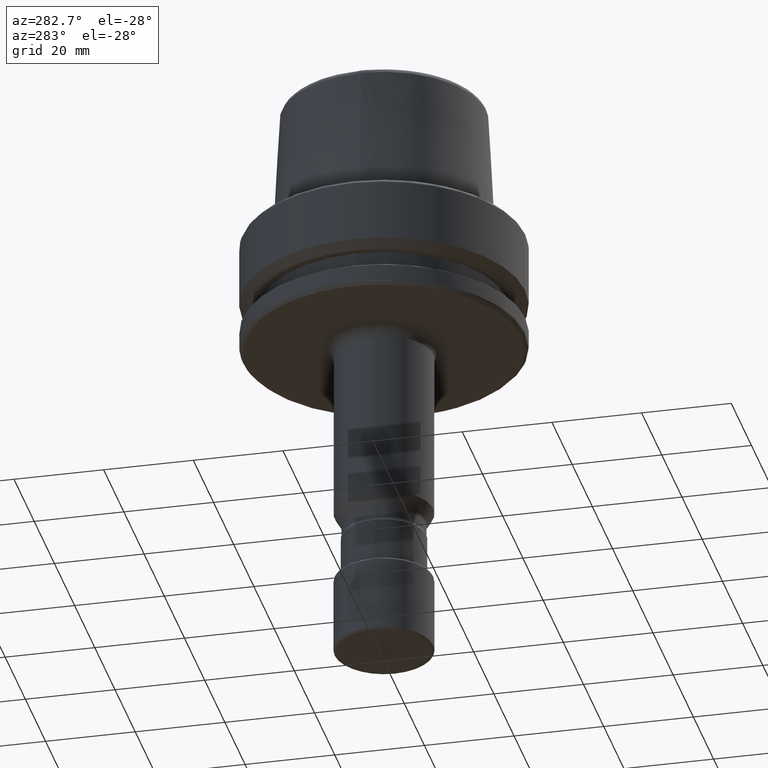
[diagram: clean part render]
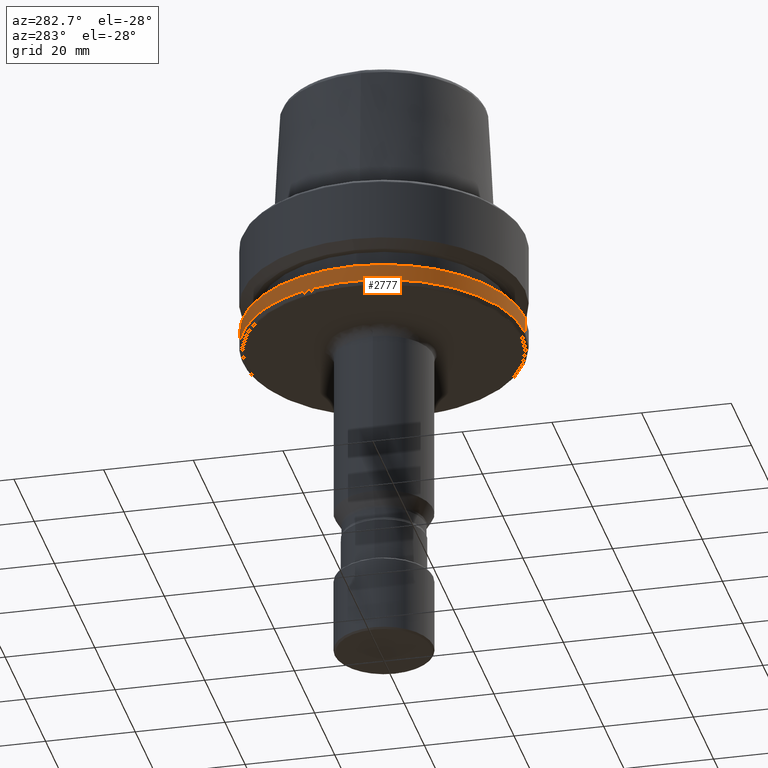
[diagram: same view with one face highlighted and labeled with its STEP entity id]
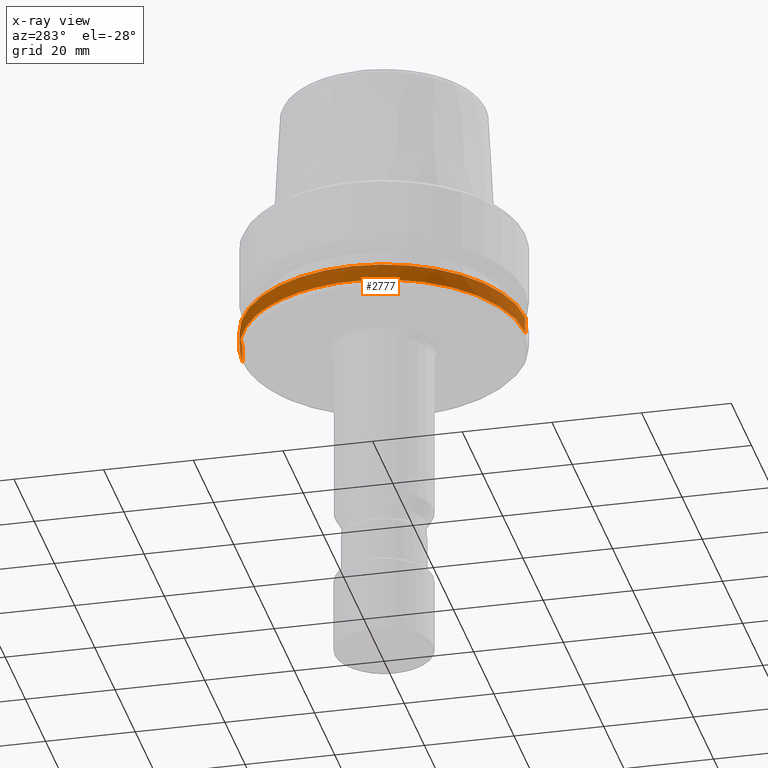
[diagram: x-ray of the same camera — body ghosted, the highlighted face saturated]
A machine part, auxiliary view. The second image highlights one B-rep face of the part: STEP entity #2777.
The next image is the same camera in x-ray: the body ghosted, the highlighted face saturated — about 0% of this face is hidden behind the body in this view.
In plain terms, the highlighted cylindrical surface (partial cylindrical patch) has radius 31.5 mm, axis along (0, -0, 1).
Its self-contained STEP definition (entity closure, byte-faithful):
#34 = CARTESIAN_POINT ( 'NONE',  ( -19.99999999999930400, 24.33618704712970500, -25.03431457509685400 ) ) ;
#56 = AXIS2_PLACEMENT_3D ( 'NONE', #1501, #3215, #1769 ) ;
#80 = CARTESIAN_POINT ( 'NONE',  ( 0.0000000000000000000, 0.0000000000000000000, -25.03431457449731900 ) ) ;
#115 = VERTEX_POINT ( 'NONE', #2677 ) ;
#143 = DIRECTION ( 'NONE',  ( 0.0000000000000000000, -5.507058653894625200E-017, 1.000000000000000000 ) ) ;
#166 = VERTEX_POINT ( 'NONE', #1015 ) ;
#231 = EDGE_LOOP ( 'NONE', ( #864, #1748, #1531, #1711, #2471, #802, #332, #687, #1664 ) ) ;
#322 = FACE_OUTER_BOUND ( 'NONE', #231, .T. ) ;
#332 = ORIENTED_EDGE ( 'NONE', *, *, #2000, .T. ) ;
#338 = VERTEX_POINT ( 'NONE', #684 ) ;
#380 = DIRECTION ( 'NONE',  ( 1.000000000000000000, 0.0000000000000000000, 0.0000000000000000000 ) ) ;
#393 = CIRCLE ( 'NONE', #2925, 31.49999999736794700 ) ;
#445 = EDGE_CURVE ( 'NONE', #166, #338, #2544, .T. ) ;
#515 = VERTEX_POINT ( 'NONE', #935 ) ;
#544 = AXIS2_PLACEMENT_3D ( 'NONE', #837, #2607, #1103 ) ;
#684 = CARTESIAN_POINT ( 'NONE',  ( -30.28398955399999800, -8.667754999000001300, -25.03431457553399000 ) ) ;
#687 = ORIENTED_EDGE ( 'NONE', *, *, #3324, .F. ) ;
#714 = EDGE_CURVE ( 'NONE', #2758, #115, #2633, .T. ) ;
#729 = VECTOR ( 'NONE', #2854, 1000.000000000000000 ) ;
#740 = VERTEX_POINT ( 'NONE', #1188 ) ;
#741 = EDGE_CURVE ( 'NONE', #515, #338, #2423, .T. ) ;
#773 = LINE ( 'NONE', #2843, #729 ) ;
#802 = ORIENTED_EDGE ( 'NONE', *, *, #445, .F. ) ;
#837 = CARTESIAN_POINT ( 'NONE',  ( 0.0000000000000000000, 0.0000000000000000000, -25.03431457500000700 ) ) ;
#864 = ORIENTED_EDGE ( 'NONE', *, *, #714, .F. ) ;
#875 = DIRECTION ( 'NONE',  ( 0.0000000000000000000, -0.0000000000000000000, -1.000000000000000000 ) ) ;
#935 = CARTESIAN_POINT ( 'NONE',  ( -30.31739047733436400, 8.550195005946042300, -25.03431457515185300 ) ) ;
#1015 = CARTESIAN_POINT ( 'NONE',  ( 0.0000000000000000000, -31.50000000000000000, -25.03431457497092400 ) ) ;
#1066 = AXIS2_PLACEMENT_3D ( 'NONE', #1438, #3162, #1713 ) ;
#1103 = DIRECTION ( 'NONE',  ( 1.000000000000000000, 0.0000000000000000000, 2.202823461557850300E-016 ) ) ;
#1106 = AXIS2_PLACEMENT_3D ( 'NONE', #2740, #143, #2988 ) ;
#1188 = CARTESIAN_POINT ( 'NONE',  ( 0.0000000000000000000, -31.49999999736794700, -21.35544551591030100 ) ) ;
#1192 = CARTESIAN_POINT ( 'NONE',  ( -31.49999999736794700, 0.0000000000000000000, -21.35544551591030100 ) ) ;
#1193 = CARTESIAN_POINT ( 'NONE',  ( 3.857637417314162700E-015, 31.50000000000000000, -25.03431457500000000 ) ) ;
#1198 = AXIS2_PLACEMENT_3D ( 'NONE', #80, #1984, #380 ) ;
#1225 = CARTESIAN_POINT ( 'NONE',  ( 0.0000000000000000000, 0.0000000000000000000, -25.03431457449731900 ) ) ;
#1303 = AXIS2_PLACEMENT_3D ( 'NONE', #1225, #2965, #1498 ) ;
#1379 = CIRCLE ( 'NONE', #1066, 31.50000000000000000 ) ;
#1422 = DIRECTION ( 'NONE',  ( 0.0000000000000000000, -5.507058653894625200E-017, 1.000000000000000000 ) ) ;
#1425 = CARTESIAN_POINT ( 'NONE',  ( 3.857637417314162700E-015, 31.50000000000000000, -25.03431457500000700 ) ) ;
#1438 = CARTESIAN_POINT ( 'NONE',  ( 0.0000000000000000000, 0.0000000000000000000, -25.03431457500000700 ) ) ;
#1498 = DIRECTION ( 'NONE',  ( 1.000000000000000000, 0.0000000000000000000, 0.0000000000000000000 ) ) ;
#1501 = CARTESIAN_POINT ( 'NONE',  ( 0.0000000000000000000, 0.0000000000000000000, -21.35544551591030100 ) ) ;
#1531 = ORIENTED_EDGE ( 'NONE', *, *, #2272, .T. ) ;
#1570 = CIRCLE ( 'NONE', #1303, 31.49999999736794700 ) ;
#1628 = CARTESIAN_POINT ( 'NONE',  ( 0.0000000000000000000, 0.0000000000000000000, -21.35544551591030100 ) ) ;
#1664 = ORIENTED_EDGE ( 'NONE', *, *, #1938, .F. ) ;
#1711 = ORIENTED_EDGE ( 'NONE', *, *, #1770, .F. ) ;
#1713 = DIRECTION ( 'NONE',  ( 1.000000000000000000, 0.0000000000000000000, 2.202823461557850300E-016 ) ) ;
#1748 = ORIENTED_EDGE ( 'NONE', *, *, #3231, .F. ) ;
#1769 = DIRECTION ( 'NONE',  ( 1.000000000000000000, 0.0000000000000000000, 0.0000000000000000000 ) ) ;
#1770 = EDGE_CURVE ( 'NONE', #515, #2597, #1784, .T. ) ;
#1784 = CIRCLE ( 'NONE', #544, 31.50000000000000000 ) ;
#1886 = DIRECTION ( 'NONE',  ( 1.000000000000000000, 0.0000000000000000000, 0.0000000000000000000 ) ) ;
#1938 = EDGE_CURVE ( 'NONE', #115, #2212, #393, .T. ) ;
#1984 = DIRECTION ( 'NONE',  ( -0.0000000000000000000, -0.0000000000000000000, 1.000000000000000000 ) ) ;
#2000 = EDGE_CURVE ( 'NONE', #166, #740, #773, .T. ) ;
#2115 = VECTOR ( 'NONE', #1422, 1000.000000000000000 ) ;
#2212 = VERTEX_POINT ( 'NONE', #1192 ) ;
#2272 = EDGE_CURVE ( 'NONE', #2753, #2597, #1570, .T. ) ;
#2308 = CYLINDRICAL_SURFACE ( 'NONE', #1106, 31.50000000000000000 ) ;
#2412 = CARTESIAN_POINT ( 'NONE',  ( -7.293089743232172900E-010, 6.264077798134870500E-010, -25.03431457497092400 ) ) ;
#2423 = CIRCLE ( 'NONE', #1198, 31.49999999736794700 ) ;
#2471 = ORIENTED_EDGE ( 'NONE', *, *, #741, .T. ) ;
#2544 = CIRCLE ( 'NONE', #2985, 31.50000000037379900 ) ;
#2597 = VERTEX_POINT ( 'NONE', #2976 ) ;
#2607 = DIRECTION ( 'NONE',  ( -0.0000000000000000000, -0.0000000000000000000, -1.000000000000000000 ) ) ;
#2633 = LINE ( 'NONE', #1193, #2115 ) ;
#2643 = DIRECTION ( 'NONE',  ( -1.000000000000000000, 0.0000000000000000000, 0.0000000000000000000 ) ) ;
#2677 = CARTESIAN_POINT ( 'NONE',  ( 3.857637417152996000E-015, 31.49999999736794700, -21.35544551591030100 ) ) ;
#2740 = CARTESIAN_POINT ( 'NONE',  ( 0.0000000000000000000, 0.0000000000000000000, -25.03431457500000000 ) ) ;
#2753 = VERTEX_POINT ( 'NONE', #34 ) ;
#2758 = VERTEX_POINT ( 'NONE', #1425 ) ;
#2777 = ADVANCED_FACE ( 'NONE', ( #322 ), #2308, .T. ) ;
#2843 = CARTESIAN_POINT ( 'NONE',  ( 0.0000000000000000000, -31.50000000000000000, -25.03431457500000000 ) ) ;
#2854 = DIRECTION ( 'NONE',  ( 0.0000000000000000000, -5.507058653894625200E-017, 1.000000000000000000 ) ) ;
#2925 = AXIS2_PLACEMENT_3D ( 'NONE', #1628, #3331, #1886 ) ;
#2965 = DIRECTION ( 'NONE',  ( -0.0000000000000000000, -0.0000000000000000000, 1.000000000000000000 ) ) ;
#2976 = CARTESIAN_POINT ( 'NONE',  ( -24.33618704724229400, 19.99999999999999600, -25.03431457509636700 ) ) ;
#2985 = AXIS2_PLACEMENT_3D ( 'NONE', #2412, #875, #2643 ) ;
#2988 = DIRECTION ( 'NONE',  ( 0.0000000000000000000, -1.000000000000000000, 0.0000000000000000000 ) ) ;
#3121 = CIRCLE ( 'NONE', #56, 31.49999999736794700 ) ;
#3162 = DIRECTION ( 'NONE',  ( -0.0000000000000000000, -0.0000000000000000000, -1.000000000000000000 ) ) ;
#3215 = DIRECTION ( 'NONE',  ( -0.0000000000000000000, -0.0000000000000000000, 1.000000000000000000 ) ) ;
#3231 = EDGE_CURVE ( 'NONE', #2753, #2758, #1379, .T. ) ;
#3324 = EDGE_CURVE ( 'NONE', #2212, #740, #3121, .T. ) ;
#3331 = DIRECTION ( 'NONE',  ( -0.0000000000000000000, -0.0000000000000000000, 1.000000000000000000 ) ) ;